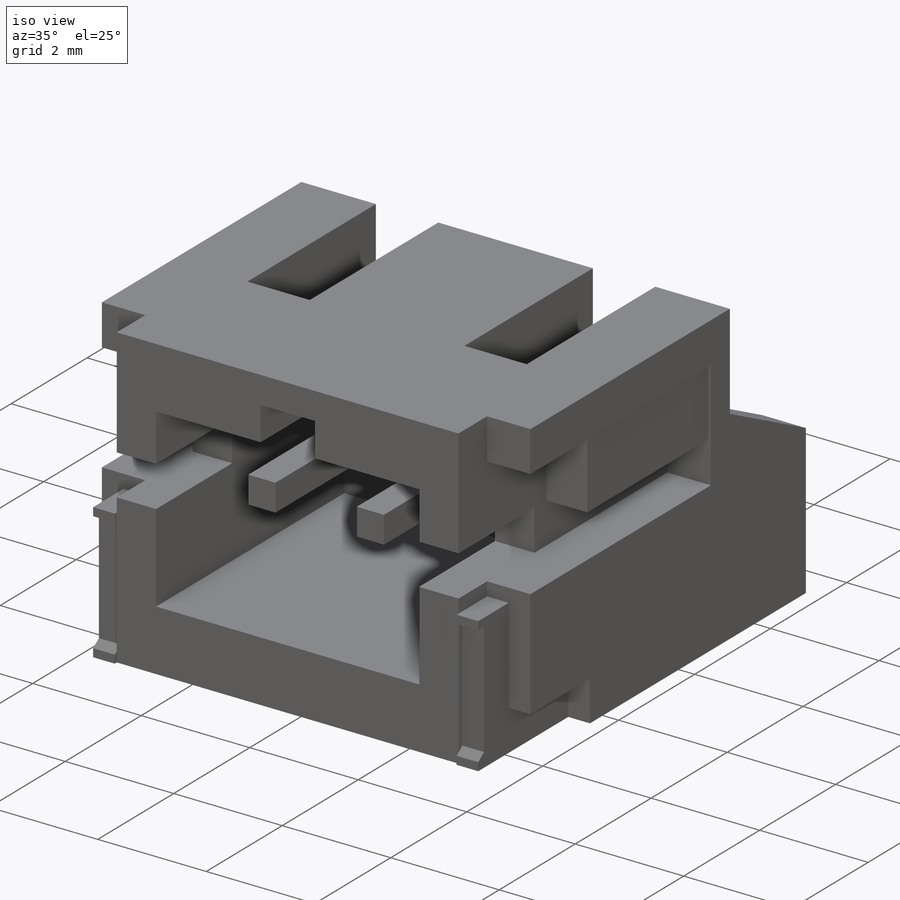
[diagram: iso view]
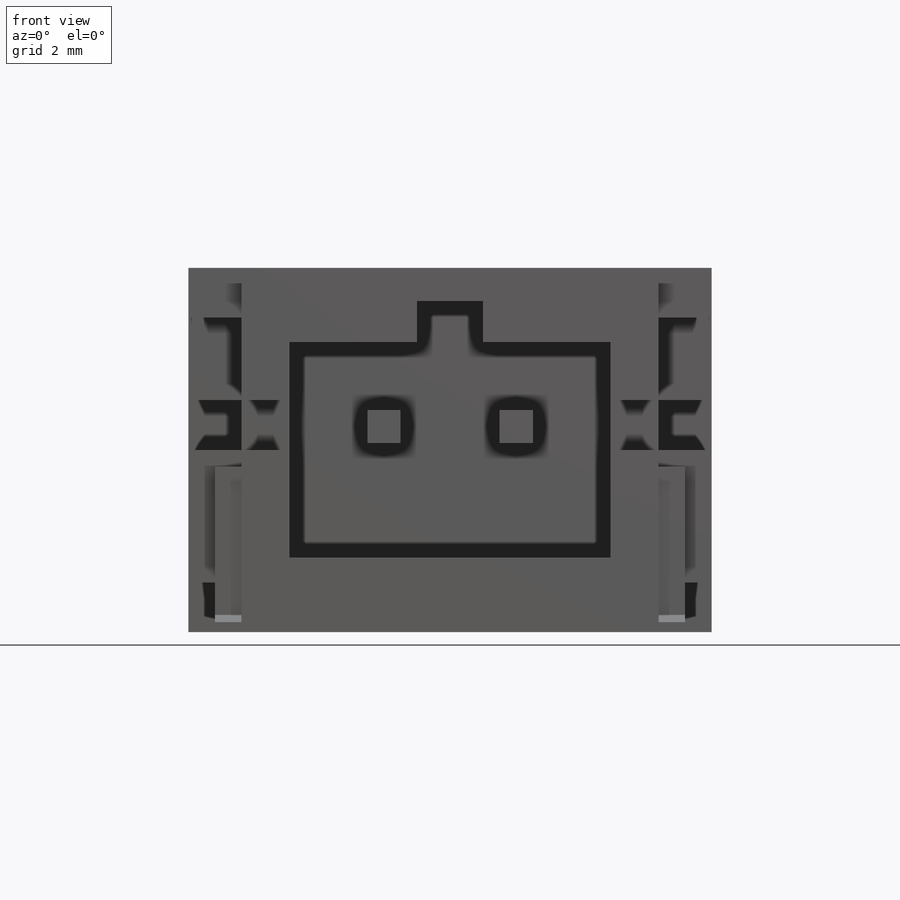
[diagram: front view]
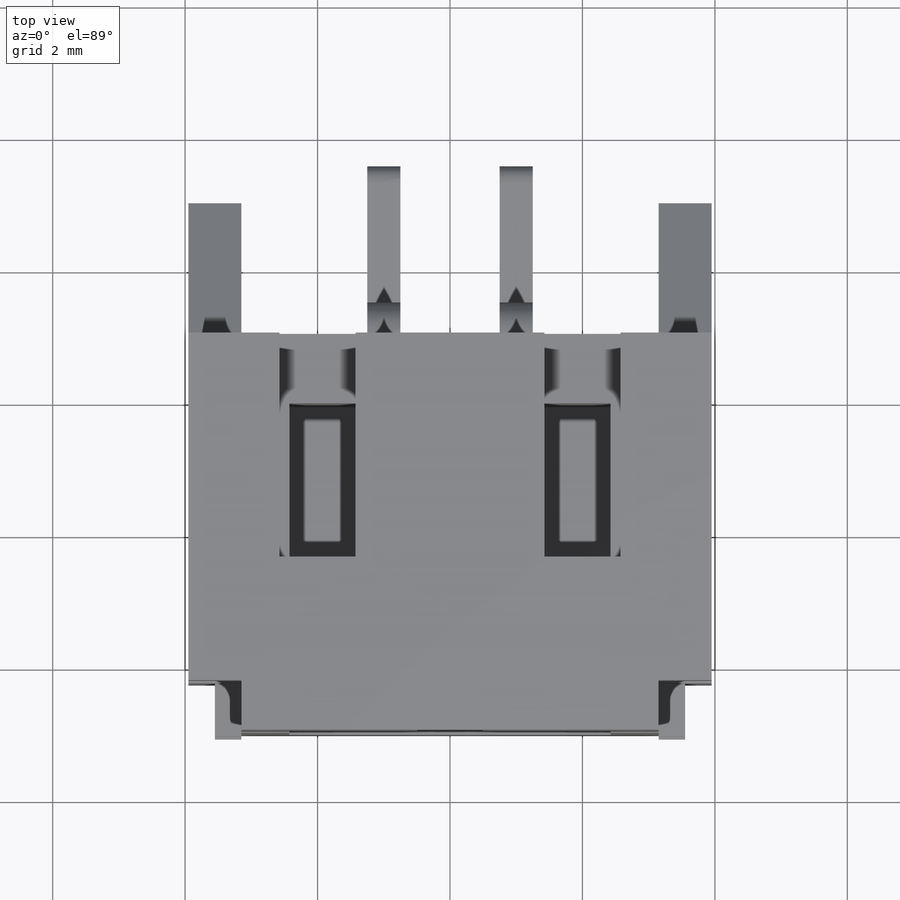
[diagram: top view]
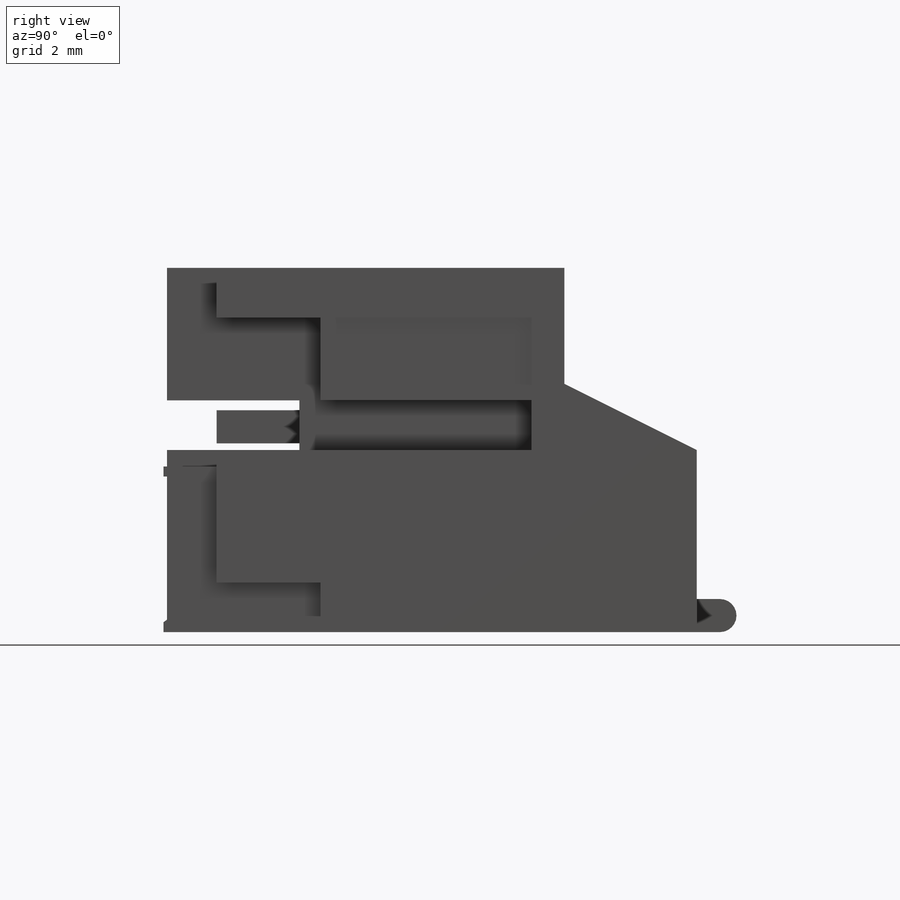
[diagram: right view]
SOLIDWORKS PART (.sldprt)
format: sldprt  version: not decoded by parser v0  size: 478,720 bytes
history: native  units: mm
features: sketch x16, mirror x6, cut_extrude x5, extrude x4, sheet_metal_op x4, plane x2, fillet x2, material x1 + 4 further entries (+13 scaffold rows collapsed; 2 parser-record rows omitted)
feature tree (59):
  scaffold x13  (default folders/planes/origin — collapsed)
  material  "Material <not specified>"
  sketch  "Sketch1"  dims[D1=7.9mm D2=6.0mm]
  extrude  "Boss-Extrude1"  Depth=5.5mm
  sketch  "Sketch2"  dims[D1=1.125mm D2=1.525mm D3=0.5mm D4=1.0mm]
  cut_extrude  "Cut-Extrude1"  Depth=4.95mm
  plane  "Plane1"
  sketch  "Sketch3"  dims[D1=0.75mm D2=0.5mm D3=2.75mm]
  cut_extrude  "Cut-Extrude2"  Depth=0.05mm
  sketch  "Sketch5"  dims[D1=1.15mm D2=2.0mm]
  mirror  "Mirror1"
  sketch  "Sketch4"  dims[c1.D1=0.75mm c1.D2=~3.184226mm c2.D2=~0.317157deg c3.D2=2.0mm c3.D3=0.75mm c3.D4=5.5mm]
  cut_extrude  "Cut-Extrude3"  Depth=0.8mm
  mirror  "Mirror2"
  cut_extrude  "Cut-Extrude4"  [1 undecoded]
  sketch  "Sketch6"  dims[D1=3.75mm D2=2.0mm D3=2.75mm]
  extrude  "Boss-Extrude2"  Depth=0.8mm
  mirror  "Mirror3"
  sketch  "Sketch7"  dims[D1=2.0mm D2=0.8mm]
  cut_extrude  "Cut-Extrude5"  [1 undecoded]
  mirror  "Mirror4"
  sketch  "Sketch8"  dims[D1=0.1mm D2=0.25mm D3=0.15mm D4=0.15mm D5=0.1mm]
  extrude  "Boss-Extrude4"  Depth=0.4mm
  sketch  "Sketch14"  dims[c1.D1=0.1mm c1.D2=0.25mm c1.D3=0.15mm c1.D4=0.15mm c1.D5=0.1mm c2.D1=~0.802407mm c2.D2=~2.368181mm]
  plane  "Plane4"  Offset=1mm
  sketch  "Sketch9"  dims[c1.D1=2.6mm c1.D2=2.65mm c1.D3=0.75mm c2.D1=0.05mm c2.D2=0.5 c2.D3=0.0deg c2.D6=~28.64789deg]
  sheet_metal_op  "Base-Flange1"
  sheet_metal_op  "BaseBend2"
  extrude  "Boss-Extrude5"  Depth=0.4mm
  fillet  "Fillet1"  Radius=0.25mm
  mirror  "Mirror7"
  fillet  "DerivedBend4"  Radius=0.05mm
  sketch  "Bend-Lines1"
  sketch  "Bounding-Box1"
  sheet_metal_op  "Sheet-Metal15"
  "Flat-Pattern15"
  sketch  "Bend-Lines2"
  sketch  "Bounding-Box2"
  parser-record x2  (decoder bookkeeping rows leaked as tree rows — omitted from the tree; the rows remain in map.json)
  "Flatten-<BaseBend2>1"
  mirror  "Sheet-Metal18"
  sheet_metal_op  "Flat-Pattern18"
  sketch  "Bend-Lines4"
  sketch  "Bounding-Box4"
  "Flatten-<DerivedBend3>1"
  "Flatten-<DerivedBend4>1"
decode coverage: 19 of 37 modeling features carry decoded parameters; 4 rows unclassified (native names shown)
note: ~ marks probable driven/reference dimensions
note: 2 parameter values undecoded
note: suppression state not decoded; provenance and decode notes live in map.json
